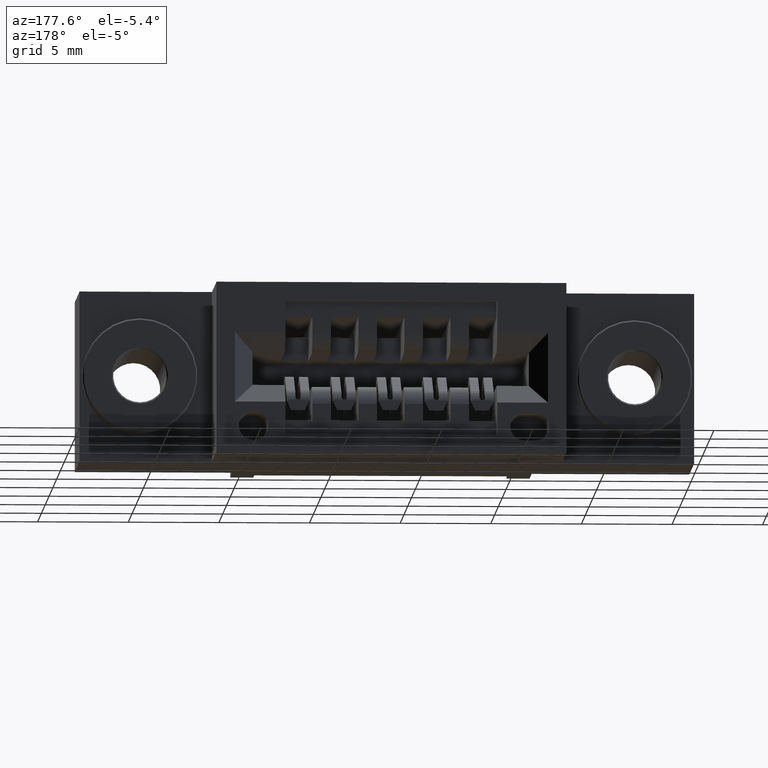
[diagram: clean part render]
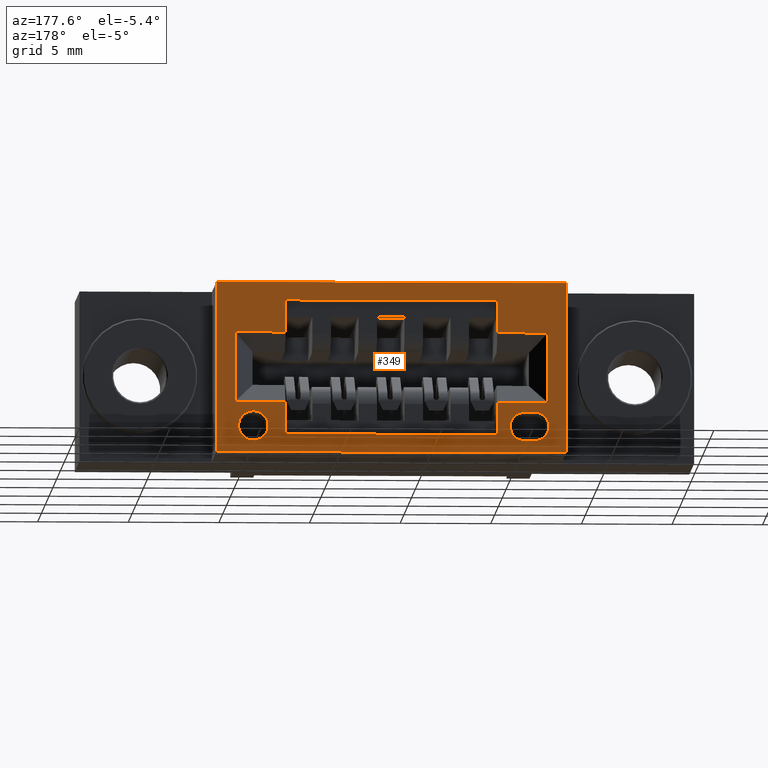
[diagram: same view with one face highlighted and labeled with its STEP entity id]
A machine part, auxiliary view. The second image highlights one B-rep face of the part: STEP entity #349.
In plain terms, the highlighted planar face has unit normal (0, -1, 0).
Its self-contained STEP definition (entity closure, byte-faithful):
#68 = VECTOR ( 'NONE', #5414, 39.37007874015748100 ) ;
#98 = CARTESIAN_POINT ( 'NONE',  ( 1.007500000000000100, 0.5999999999999999800, -0.1090000000000000800 ) ) ;
#102 = CARTESIAN_POINT ( 'NONE',  ( 0.0000000000000000000, 0.5999999999999999800, -0.3700000000000001600 ) ) ;
#136 = DIRECTION ( 'NONE',  ( -1.000000000000000000, -0.0000000000000000000, -1.023164042570885300E-016 ) ) ;
#146 = CARTESIAN_POINT ( 'NONE',  ( 0.3784999999999999500, 0.5999999999999999800, -0.3440000000000000800 ) ) ;
#342 = LINE ( 'NONE', #2869, #2480 ) ;
#349 = ADVANCED_FACE ( 'NONE', ( #6769, #6298, #6416, #9089 ), #9108, .F. ) ;
#399 = CARTESIAN_POINT ( 'NONE',  ( 0.2874999999999999800, 0.5999999999999999800, 0.0000000000000000000 ) ) ;
#462 = CARTESIAN_POINT ( 'NONE',  ( 0.0000000000000000000, 0.5999999999999999800, -0.1090000000000000800 ) ) ;
#466 = EDGE_CURVE ( 'NONE', #7744, #7608, #6051, .T. ) ;
#516 = AXIS2_PLACEMENT_3D ( 'NONE', #2543, #1689, #1723 ) ;
#606 = EDGE_CURVE ( 'NONE', #2870, #3701, #9308, .T. ) ;
#631 = CARTESIAN_POINT ( 'NONE',  ( 0.8974999999999977400, 0.5999999999999999800, -0.3309999999999998500 ) ) ;
#749 = CARTESIAN_POINT ( 'NONE',  ( 1.047500000000000300, 0.5999999999999999800, -0.3699999999999999400 ) ) ;
#761 = CARTESIAN_POINT ( 'NONE',  ( 1.007500000000000100, 0.5999999999999999800, -0.3700000000000001600 ) ) ;
#803 = DIRECTION ( 'NONE',  ( 0.0000000000000000000, 0.0000000000000000000, 1.000000000000000000 ) ) ;
#863 = VERTEX_POINT ( 'NONE', #146 ) ;
#878 = LINE ( 'NONE', #1506, #4145 ) ;
#974 = CARTESIAN_POINT ( 'NONE',  ( 0.8974999999999999600, 0.5999999999999999800, -0.2610000000000000700 ) ) ;
#984 = DIRECTION ( 'NONE',  ( 0.0000000000000000000, 0.0000000000000000000, 1.000000000000000000 ) ) ;
#1096 = CARTESIAN_POINT ( 'NONE',  ( 0.3274999999999998500, 0.5999999999999999800, -0.3700000000000001600 ) ) ;
#1108 = EDGE_CURVE ( 'NONE', #5629, #5930, #4089, .T. ) ;
#1109 = DIRECTION ( 'NONE',  ( -1.000000000000000000, -0.0000000000000000000, -1.930109995523677900E-015 ) ) ;
#1156 = CARTESIAN_POINT ( 'NONE',  ( 0.0000000000000000000, 0.5999999999999999800, -0.2610000000000000700 ) ) ;
#1226 = ORIENTED_EDGE ( 'NONE', *, *, #2215, .F. ) ;
#1255 = ORIENTED_EDGE ( 'NONE', *, *, #3953, .F. ) ;
#1294 = VERTEX_POINT ( 'NONE', #98 ) ;
#1339 = CARTESIAN_POINT ( 'NONE',  ( 0.4375000000000010000, 0.5999999999999999800, -0.03900000000000072900 ) ) ;
#1341 = VERTEX_POINT ( 'NONE', #3173 ) ;
#1348 = EDGE_CURVE ( 'NONE', #4704, #1341, #3396, .T. ) ;
#1462 = EDGE_LOOP ( 'NONE', ( #1255, #1226 ) ) ;
#1483 = LINE ( 'NONE', #4686, #5779 ) ;
#1506 = CARTESIAN_POINT ( 'NONE',  ( 1.047500000000000300, 0.5999999999999999800, 0.0000000000000000000 ) ) ;
#1520 = LINE ( 'NONE', #761, #7680 ) ;
#1569 = DIRECTION ( 'NONE',  ( 0.0000000000000000000, 0.0000000000000000000, 1.000000000000000000 ) ) ;
#1607 = EDGE_CURVE ( 'NONE', #1294, #2870, #3566, .T. ) ;
#1614 = LINE ( 'NONE', #102, #6491 ) ;
#1641 = EDGE_CURVE ( 'NONE', #9111, #9268, #2776, .T. ) ;
#1689 = DIRECTION ( 'NONE',  ( 0.0000000000000000000, 1.000000000000000000, 0.0000000000000000000 ) ) ;
#1723 = DIRECTION ( 'NONE',  ( 0.0000000000000000000, 0.0000000000000000000, 1.000000000000000000 ) ) ;
#1799 = ORIENTED_EDGE ( 'NONE', *, *, #8559, .T. ) ;
#1863 = EDGE_LOOP ( 'NONE', ( #3131, #7648, #6387, #7226 ) ) ;
#1970 = VERTEX_POINT ( 'NONE', #2050 ) ;
#2007 = LINE ( 'NONE', #2983, #8270 ) ;
#2050 = CARTESIAN_POINT ( 'NONE',  ( 0.9675000000000000300, 0.5999999999999999800, -0.2809999999999996900 ) ) ;
#2120 = VECTOR ( 'NONE', #1109, 39.37007874015748100 ) ;
#2154 = EDGE_CURVE ( 'NONE', #7468, #5458, #878, .T. ) ;
#2215 = EDGE_CURVE ( 'NONE', #6778, #1970, #7392, .T. ) ;
#2364 = DIRECTION ( 'NONE',  ( 0.0000000000000000000, 1.000000000000000000, 0.0000000000000000000 ) ) ;
#2443 = CARTESIAN_POINT ( 'NONE',  ( 0.0000000000000000000, 0.5999999999999999800, -0.3700000000000001600 ) ) ;
#2470 = CARTESIAN_POINT ( 'NONE',  ( 0.4374999999999998900, 0.5999999999999999800, -0.2974999999999999900 ) ) ;
#2480 = VECTOR ( 'NONE', #5836, 39.37007874015748100 ) ;
#2543 = CARTESIAN_POINT ( 'NONE',  ( 0.9675000000000000300, 0.5999999999999999800, -0.3130000000000000600 ) ) ;
#2549 = VERTEX_POINT ( 'NONE', #4977 ) ;
#2699 = DIRECTION ( 'NONE',  ( 0.0000000000000000000, 0.0000000000000000000, -1.000000000000000000 ) ) ;
#2719 = VERTEX_POINT ( 'NONE', #5866 ) ;
#2776 = LINE ( 'NONE', #399, #9030 ) ;
#2869 = CARTESIAN_POINT ( 'NONE',  ( 0.4374999999999998900, 0.5999999999999999800, -0.2974999999999999900 ) ) ;
#2870 = VERTEX_POINT ( 'NONE', #3132 ) ;
#2907 = CARTESIAN_POINT ( 'NONE',  ( 0.2874999999999999800, 0.5999999999999999800, 0.0000000000000000000 ) ) ;
#2952 = LINE ( 'NONE', #6617, #8629 ) ;
#2983 = CARTESIAN_POINT ( 'NONE',  ( 0.3564999999999999300, 0.5999999999999999800, -0.2820000000000000800 ) ) ;
#3131 = ORIENTED_EDGE ( 'NONE', *, *, #5656, .F. ) ;
#3132 = CARTESIAN_POINT ( 'NONE',  ( 0.8974999999999999600, 0.5999999999999999800, -0.1090000000000000800 ) ) ;
#3173 = CARTESIAN_POINT ( 'NONE',  ( 0.3564999999999999300, 0.5999999999999999800, -0.2820000000000000800 ) ) ;
#3223 = DIRECTION ( 'NONE',  ( 0.0000000000000000000, -0.0000000000000000000, -1.000000000000000000 ) ) ;
#3396 = CIRCLE ( 'NONE', #5436, 0.03099999999999998900 ) ;
#3397 = VECTOR ( 'NONE', #5014, 39.37007874015748100 ) ;
#3399 = DIRECTION ( 'NONE',  ( -1.000000000000000000, 0.0000000000000000000, 0.0000000000000000000 ) ) ;
#3429 = EDGE_CURVE ( 'NONE', #6771, #2549, #9344, .T. ) ;
#3537 = CIRCLE ( 'NONE', #516, 0.03200000000000033400 ) ;
#3566 = LINE ( 'NONE', #462, #5994 ) ;
#3701 = VERTEX_POINT ( 'NONE', #8852 ) ;
#3712 = DIRECTION ( 'NONE',  ( 1.000000000000000000, 0.0000000000000000000, 3.104372720073026700E-015 ) ) ;
#3835 = DIRECTION ( 'NONE',  ( 0.0000000000000000000, 0.0000000000000000000, 1.000000000000000000 ) ) ;
#3953 = EDGE_CURVE ( 'NONE', #1970, #6778, #3537, .T. ) ;
#4011 = DIRECTION ( 'NONE',  ( -1.000000000000000000, 0.0000000000000000000, 0.0000000000000000000 ) ) ;
#4089 = LINE ( 'NONE', #7931, #2120 ) ;
#4145 = VECTOR ( 'NONE', #8892, 39.37007874015748100 ) ;
#4233 = EDGE_CURVE ( 'NONE', #8008, #863, #9337, .T. ) ;
#4290 = CARTESIAN_POINT ( 'NONE',  ( 0.3784999999999999500, 0.5999999999999999800, -0.2820000000000000300 ) ) ;
#4327 = DIRECTION ( 'NONE',  ( 1.000000000000000000, 0.0000000000000000000, 1.930109995523677900E-015 ) ) ;
#4539 = CARTESIAN_POINT ( 'NONE',  ( 0.3564999999999999800, 0.5999999999999999800, -0.3440000000000000800 ) ) ;
#4566 = EDGE_CURVE ( 'NONE', #6924, #6771, #1483, .T. ) ;
#4569 = VECTOR ( 'NONE', #7707, 39.37007874015748100 ) ;
#4686 = CARTESIAN_POINT ( 'NONE',  ( 0.0000000000000000000, 0.5999999999999999800, -0.1090000000000000800 ) ) ;
#4704 = VERTEX_POINT ( 'NONE', #4539 ) ;
#4725 = ORIENTED_EDGE ( 'NONE', *, *, #7960, .F. ) ;
#4885 = ORIENTED_EDGE ( 'NONE', *, *, #5577, .T. ) ;
#4977 = CARTESIAN_POINT ( 'NONE',  ( 0.3274999999999998500, 0.5999999999999999800, -0.2610000000000000700 ) ) ;
#5014 = DIRECTION ( 'NONE',  ( 1.000000000000000000, 0.0000000000000000000, 0.0000000000000000000 ) ) ;
#5018 = CARTESIAN_POINT ( 'NONE',  ( 0.8974999999999999600, 0.5999999999999999800, -0.2974999999999999900 ) ) ;
#5292 = CARTESIAN_POINT ( 'NONE',  ( 0.3564999999999999800, 0.5999999999999999800, -0.3130000000000000600 ) ) ;
#5375 = DIRECTION ( 'NONE',  ( 0.0000000000000000000, 1.000000000000000000, 0.0000000000000000000 ) ) ;
#5402 = VECTOR ( 'NONE', #2699, 39.37007874015748100 ) ;
#5414 = DIRECTION ( 'NONE',  ( -1.000000000000000000, -0.0000000000000000000, -0.0000000000000000000 ) ) ;
#5436 = AXIS2_PLACEMENT_3D ( 'NONE', #5292, #2364, #3835 ) ;
#5458 = VERTEX_POINT ( 'NONE', #8353 ) ;
#5577 = EDGE_CURVE ( 'NONE', #2549, #8012, #7907, .T. ) ;
#5629 = VERTEX_POINT ( 'NONE', #631 ) ;
#5656 = EDGE_CURVE ( 'NONE', #1341, #8008, #2007, .T. ) ;
#5657 = EDGE_LOOP ( 'NONE', ( #9342, #7279, #8434, #6619, #1799, #7200, #5681, #4725, #8690, #7352, #9055, #4885 ) ) ;
#5681 = ORIENTED_EDGE ( 'NONE', *, *, #606, .T. ) ;
#5779 = VECTOR ( 'NONE', #4011, 39.37007874015748100 ) ;
#5836 = DIRECTION ( 'NONE',  ( 0.0000000000000000000, 0.0000000000000000000, 1.000000000000000000 ) ) ;
#5866 = CARTESIAN_POINT ( 'NONE',  ( 0.4375000000000010000, 0.5999999999999999800, -0.03900000000000072900 ) ) ;
#5930 = VERTEX_POINT ( 'NONE', #8768 ) ;
#5972 = DIRECTION ( 'NONE',  ( 0.0000000000000000000, 1.000000000000000000, 0.0000000000000000000 ) ) ;
#5983 = CARTESIAN_POINT ( 'NONE',  ( 0.9675000000000000300, 0.5999999999999999800, -0.3450000000000004200 ) ) ;
#5994 = VECTOR ( 'NONE', #3399, 39.37007874015748100 ) ;
#6051 = LINE ( 'NONE', #1156, #9667 ) ;
#6115 = ORIENTED_EDGE ( 'NONE', *, *, #6198, .T. ) ;
#6198 = EDGE_CURVE ( 'NONE', #7468, #9268, #1614, .T. ) ;
#6297 = LINE ( 'NONE', #1339, #9316 ) ;
#6298 = FACE_BOUND ( 'NONE', #1863, .T. ) ;
#6387 = ORIENTED_EDGE ( 'NONE', *, *, #6928, .F. ) ;
#6416 = FACE_OUTER_BOUND ( 'NONE', #6441, .T. ) ;
#6441 = EDGE_LOOP ( 'NONE', ( #9603, #9255, #6115, #7488 ) ) ;
#6461 = CARTESIAN_POINT ( 'NONE',  ( 0.4374999999999998900, 0.5999999999999999800, -0.2610000000000000700 ) ) ;
#6491 = VECTOR ( 'NONE', #136, 39.37007874015748100 ) ;
#6617 = CARTESIAN_POINT ( 'NONE',  ( 0.8974999999999999600, 0.5999999999999999800, -0.2974999999999999900 ) ) ;
#6619 = ORIENTED_EDGE ( 'NONE', *, *, #466, .T. ) ;
#6769 = FACE_BOUND ( 'NONE', #1462, .T. ) ;
#6771 = VERTEX_POINT ( 'NONE', #7481 ) ;
#6778 = VERTEX_POINT ( 'NONE', #5983 ) ;
#6794 = CARTESIAN_POINT ( 'NONE',  ( 0.9675000000000000300, 0.5999999999999999800, -0.3130000000000000600 ) ) ;
#6822 = AXIS2_PLACEMENT_3D ( 'NONE', #6794, #5972, #1569 ) ;
#6832 = CARTESIAN_POINT ( 'NONE',  ( 1.007500000000000100, 0.5999999999999999800, -0.2610000000000000700 ) ) ;
#6895 = LINE ( 'NONE', #6930, #4569 ) ;
#6924 = VERTEX_POINT ( 'NONE', #8371 ) ;
#6928 = EDGE_CURVE ( 'NONE', #863, #4704, #9044, .T. ) ;
#6930 = CARTESIAN_POINT ( 'NONE',  ( 0.0000000000000000000, 0.5999999999999999800, 0.0000000000000000000 ) ) ;
#7031 = AXIS2_PLACEMENT_3D ( 'NONE', #7611, #5375, #984 ) ;
#7200 = ORIENTED_EDGE ( 'NONE', *, *, #1607, .T. ) ;
#7203 = DIRECTION ( 'NONE',  ( 0.0000000000000000000, 0.0000000000000000000, -1.000000000000000000 ) ) ;
#7226 = ORIENTED_EDGE ( 'NONE', *, *, #4233, .F. ) ;
#7279 = ORIENTED_EDGE ( 'NONE', *, *, #1108, .F. ) ;
#7352 = ORIENTED_EDGE ( 'NONE', *, *, #4566, .T. ) ;
#7392 = CIRCLE ( 'NONE', #6822, 0.03200000000000033400 ) ;
#7397 = CARTESIAN_POINT ( 'NONE',  ( 0.2874999999999999800, 0.5999999999999999800, -0.3700000000000001600 ) ) ;
#7468 = VERTEX_POINT ( 'NONE', #749 ) ;
#7481 = CARTESIAN_POINT ( 'NONE',  ( 0.3274999999999998500, 0.5999999999999999800, -0.1090000000000000800 ) ) ;
#7488 = ORIENTED_EDGE ( 'NONE', *, *, #1641, .F. ) ;
#7608 = VERTEX_POINT ( 'NONE', #6832 ) ;
#7611 = CARTESIAN_POINT ( 'NONE',  ( 0.3784999999999999500, 0.5999999999999999800, -0.3130000000000000600 ) ) ;
#7613 = DIRECTION ( 'NONE',  ( 0.0000000000000000000, -1.000000000000000000, 0.0000000000000000000 ) ) ;
#7633 = EDGE_CURVE ( 'NONE', #9111, #5458, #6895, .T. ) ;
#7645 = CARTESIAN_POINT ( 'NONE',  ( 0.3564999999999999800, 0.5999999999999999800, -0.3440000000000000800 ) ) ;
#7647 = EDGE_CURVE ( 'NONE', #6924, #2719, #9208, .T. ) ;
#7648 = ORIENTED_EDGE ( 'NONE', *, *, #1348, .F. ) ;
#7680 = VECTOR ( 'NONE', #8110, 39.37007874015748100 ) ;
#7707 = DIRECTION ( 'NONE',  ( 1.000000000000000000, 0.0000000000000000000, 0.0000000000000000000 ) ) ;
#7744 = VERTEX_POINT ( 'NONE', #974 ) ;
#7770 = DIRECTION ( 'NONE',  ( 0.0000000000000000000, 0.0000000000000000000, 1.000000000000000000 ) ) ;
#7804 = AXIS2_PLACEMENT_3D ( 'NONE', #2443, #7613, #3223 ) ;
#7907 = LINE ( 'NONE', #8288, #3397 ) ;
#7925 = VECTOR ( 'NONE', #9480, 39.37007874015748100 ) ;
#7931 = CARTESIAN_POINT ( 'NONE',  ( 0.4375000000000010000, 0.5999999999999999800, -0.3310000000000007400 ) ) ;
#7960 = EDGE_CURVE ( 'NONE', #2719, #3701, #6297, .T. ) ;
#8008 = VERTEX_POINT ( 'NONE', #4290 ) ;
#8012 = VERTEX_POINT ( 'NONE', #6461 ) ;
#8110 = DIRECTION ( 'NONE',  ( 0.0000000000000000000, 0.0000000000000000000, 1.000000000000000000 ) ) ;
#8125 = EDGE_CURVE ( 'NONE', #5629, #7744, #2952, .T. ) ;
#8270 = VECTOR ( 'NONE', #3712, 39.37007874015748100 ) ;
#8288 = CARTESIAN_POINT ( 'NONE',  ( 0.0000000000000000000, 0.5999999999999999800, -0.2610000000000000700 ) ) ;
#8353 = CARTESIAN_POINT ( 'NONE',  ( 1.047500000000000300, 0.5999999999999999800, 0.0000000000000000000 ) ) ;
#8371 = CARTESIAN_POINT ( 'NONE',  ( 0.4374999999999998900, 0.5999999999999999800, -0.1090000000000000800 ) ) ;
#8434 = ORIENTED_EDGE ( 'NONE', *, *, #8125, .T. ) ;
#8537 = DIRECTION ( 'NONE',  ( 1.000000000000000000, 0.0000000000000000000, 0.0000000000000000000 ) ) ;
#8559 = EDGE_CURVE ( 'NONE', #7608, #1294, #1520, .T. ) ;
#8629 = VECTOR ( 'NONE', #803, 39.37007874015748100 ) ;
#8690 = ORIENTED_EDGE ( 'NONE', *, *, #7647, .F. ) ;
#8768 = CARTESIAN_POINT ( 'NONE',  ( 0.4375000000000010000, 0.5999999999999999800, -0.3310000000000007400 ) ) ;
#8852 = CARTESIAN_POINT ( 'NONE',  ( 0.8974999999999977400, 0.5999999999999999800, -0.03899999999999984000 ) ) ;
#8892 = DIRECTION ( 'NONE',  ( -0.0000000000000000000, -0.0000000000000000000, 1.000000000000000000 ) ) ;
#8978 = VECTOR ( 'NONE', #7770, 39.37007874015748100 ) ;
#9030 = VECTOR ( 'NONE', #7203, 39.37007874015748100 ) ;
#9044 = LINE ( 'NONE', #7645, #68 ) ;
#9055 = ORIENTED_EDGE ( 'NONE', *, *, #3429, .T. ) ;
#9089 = FACE_BOUND ( 'NONE', #5657, .T. ) ;
#9108 = PLANE ( 'NONE',  #7804 ) ;
#9111 = VERTEX_POINT ( 'NONE', #2907 ) ;
#9182 = EDGE_CURVE ( 'NONE', #5930, #8012, #342, .T. ) ;
#9208 = LINE ( 'NONE', #2470, #8978 ) ;
#9255 = ORIENTED_EDGE ( 'NONE', *, *, #2154, .F. ) ;
#9268 = VERTEX_POINT ( 'NONE', #7397 ) ;
#9308 = LINE ( 'NONE', #5018, #7925 ) ;
#9316 = VECTOR ( 'NONE', #4327, 39.37007874015748100 ) ;
#9337 = CIRCLE ( 'NONE', #7031, 0.03100000000000002400 ) ;
#9342 = ORIENTED_EDGE ( 'NONE', *, *, #9182, .F. ) ;
#9344 = LINE ( 'NONE', #1096, #5402 ) ;
#9480 = DIRECTION ( 'NONE',  ( 0.0000000000000000000, 0.0000000000000000000, 1.000000000000000000 ) ) ;
#9603 = ORIENTED_EDGE ( 'NONE', *, *, #7633, .T. ) ;
#9667 = VECTOR ( 'NONE', #8537, 39.37007874015748100 ) ;